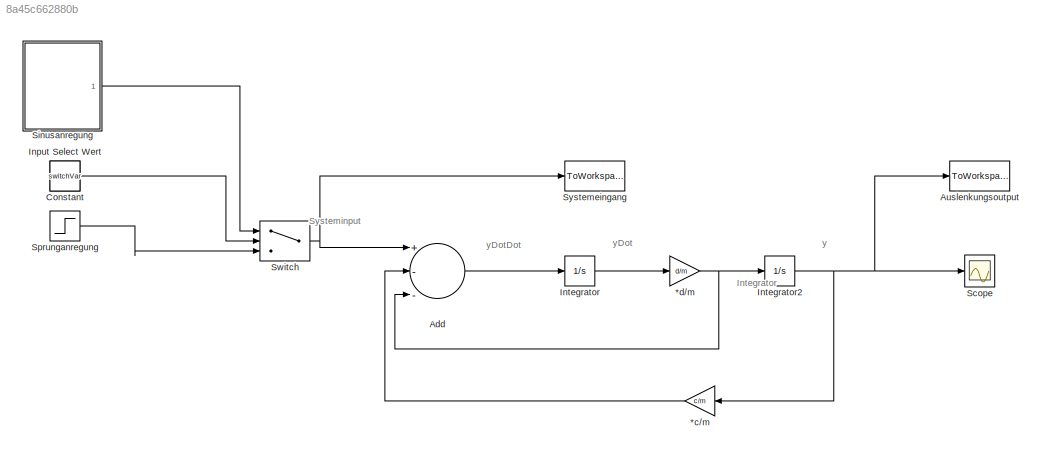
MODEL slx_8a45c662880b
KIND model
CONFIG AbsTol = auto
CONFIG EnableMultiTasking = off
CONFIG FixedStep = stepSize
CONFIG MaxStep = auto
CONFIG MinStep = auto
CONFIG RelTol = relTol
CONFIG SampleTimeConstraint = Unconstrained
CONFIG Solver = ode8
CONFIG SolverName = ode8
CONFIG StartTime = 0.0
CONFIG StopTime = t_max
BLOCK [Gain] *c//m
  Gain = c/m
  OutDataTypeStr = Inherit: Inherit via internal rule
  ParamDataTypeStr = Inherit: Inherit via internal rule
  SaturateOnIntegerOverflow = off
BLOCK [Gain] *d//m
  Gain = d/m
  OutDataTypeStr = Inherit: Inherit via internal rule
  ParamDataTypeStr = Inherit: Inherit via internal rule
  SaturateOnIntegerOverflow = off
BLOCK [Sum] Add
  InputSameDT = off
  Inputs = +--
  OutDataTypeStr = Inherit: Inherit via internal rule
  Ports = [3, 1]
  SaturateOnIntegerOverflow = off
BLOCK [ToWorkspace] Auslenkungsoutput
  FixptAsFi = on
  MaxDataPoints = inf
  Ports = [1]
  SampleTime = -1
  Save2DSignal = 3-D array (concatenate along third dimension)
  VariableName = yOut_A2
BLOCK [Constant] Constant
BLOCK [Constant] Input Select Wert
  Value = switchVar
BLOCK [Integrator] Integrator 
  InitialCondition = yDot0
  Ports = [1, 1]
BLOCK [Integrator] Integrator2
  InitialCondition = y0
  Ports = [1, 1]
BLOCK [Scope] Scope
  NumInputPorts = 1
  Ports = [1]
  ScopeSpecificationString = Simulink.scopes.TimeScopeBlockCfg('CurrentConfiguration', extmgr.ConfigurationSet(extmgr.Configuration('Core','General UI',true),extmgr.Configuration('Core','Source UI',true),extmgr.Configuration('Sources','WiredSimulink',true),extmgr.Configuration('Visuals','Time Domain',true,'SerializedDisplays',{struct('MinYLimReal','-0.45716','MaxYLimReal','0.45918','YLabelReal','','MinYLimMag','0.00000','MaxY...<+1359ch>
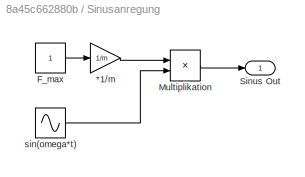
BLOCK [SubSystem] Sinusanregung
  Ports = [0, 1]
  RequestExecContextInheritance = off
  Variant = off
BLOCK [Gain] Sinusanregung/*1//m
  Gain = 1/m
  OutDataTypeStr = Inherit: Inherit via internal rule
  ParamDataTypeStr = Inherit: Inherit via internal rule
  SaturateOnIntegerOverflow = off
BLOCK [Constant] Sinusanregung/F_max
BLOCK [Product] Sinusanregung/Multiplikation
  InputSameDT = off
  OutDataTypeStr = Inherit: Inherit via internal rule
  Ports = [2, 1]
  RndMeth = Floor
  SaturateOnIntegerOverflow = off
BLOCK [Outport] Sinusanregung/Sinus Out
  IconDisplay = Signal name
BLOCK [Sin] Sinusanregung/sin(omega*t)
  Frequency = omega
  Ports = [0, 1]
  SampleTime = 0
BLOCK [Step] Sprunganregung
  After = F_sigma
  SampleTime = 0
BLOCK [Switch] Switch
  Criteria = u2 > Threshold
  InputSameDT = off
  SaturateOnIntegerOverflow = off
BLOCK [ToWorkspace] Systemeingang
  FixptAsFi = on
  MaxDataPoints = inf
  Ports = [1]
  SampleTime = -1
  Save2DSignal = 3-D array (concatenate along third dimension)
  SaveFormat = Timeseries
  VariableName = F_t_A2
ANNOTATION (root): Integrator
ANNOTATION (root): Systeminput
ANNOTATION (root): y
ANNOTATION (root): yDot
ANNOTATION (root): yDotDot
LINE *c//m:1 -> Add:2
NET *d//m:1 -> Add:3, Integrator2:1
LINE Add:1 -> Integrator :1
LINE Input Select Wert:1 -> Switch:2
LINE Integrator :1 -> *d//m:1
NET Integrator2:1 -> *c//m:1, Auslenkungsoutput:1, Scope:1
LINE Sinusanregung/*1//m:1 -> Sinusanregung/Multiplikation:1
LINE Sinusanregung/F_max:1 -> Sinusanregung/*1//m:1
LINE Sinusanregung/Multiplikation:1 -> Sinusanregung/Sinus Out:1
LINE Sinusanregung/sin(omega*t):1 -> Sinusanregung/Multiplikation:2
LINE Sinusanregung:1 -> Switch:1
LINE Sprunganregung:1 -> Switch:3
NET Switch:1 -> Add:1, Systemeingang:1
note: NET lines group one-source signal fan-out (src -> all destinations, sorted); 1:1 wires keep LINE
